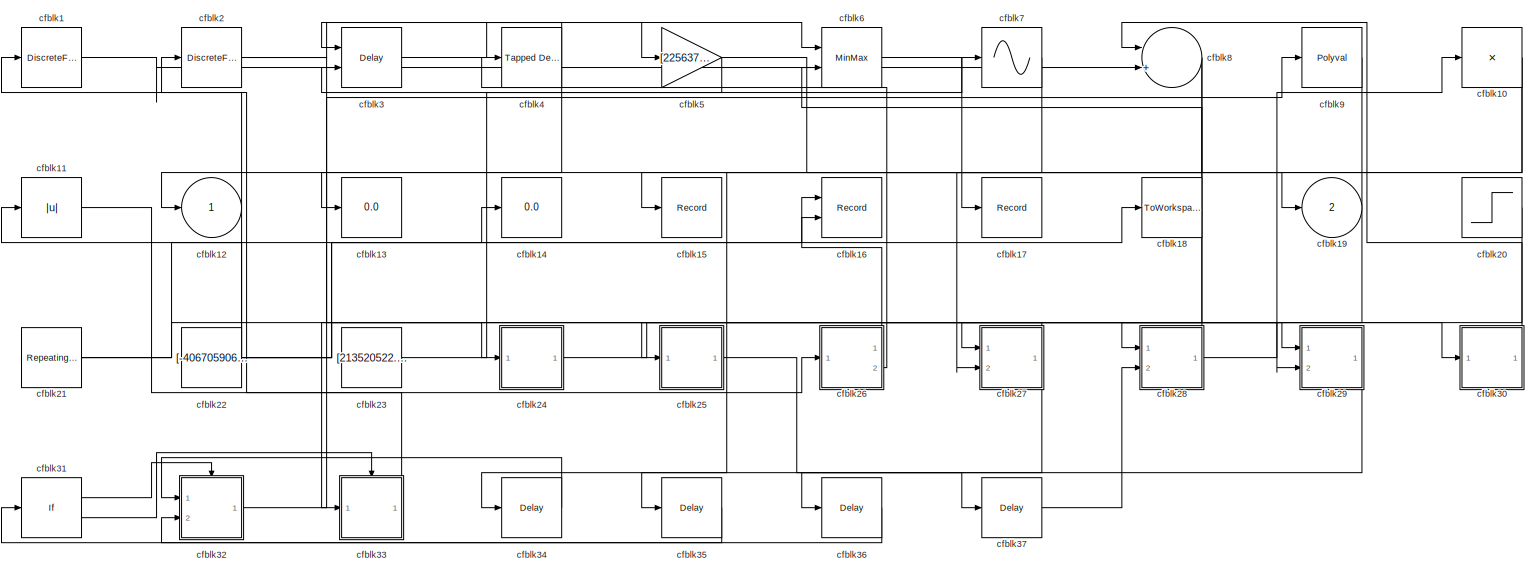
[diagram: root canvas - part 1/1, most of the canvas]
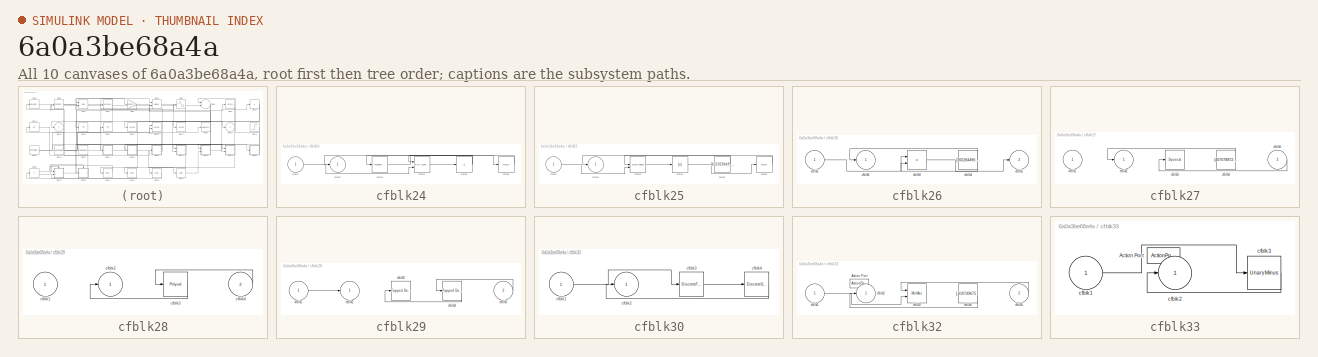
[diagram: thumbnail index - all 10 canvases of the model, root first then tree order]
MODEL slx_6a0a3be68a4a
KIND model
CONFIG AbsTol = auto
CONFIG EnableMultiTasking = off
CONFIG FixedStep = auto
CONFIG MaxStep = auto
CONFIG MinStep = auto
CONFIG RelTol = 1e-3
CONFIG SampleTimeConstraint = Unconstrained
CONFIG SolverName = VariableStepAuto
CONFIG StartTime = 0.0
CONFIG StopTime = 10.0
BLOCK [DiscreteFilter] cfblk1
  InputPortMap = u0
  Ports = [1, 1]
  SampleTime = 1
BLOCK [Product] cfblk10
  Inputs = *
  Ports = [1, 1]
BLOCK [Abs] cfblk11
  SaturateOnIntegerOverflow = off
BLOCK [Outport] cfblk12
BLOCK [Display] cfblk13
  Decimation = 1
  Ports = [1]
BLOCK [Display] cfblk14
  Decimation = 1
  Ports = [1]
BLOCK [Record] cfblk15
  FileSettingsInternal = {"entries":[{"content":{"excelSettings":{"content":{},"type":"Streamout.ExcelSettings"}},"type":"Streamout.FileSettingStorage","uuid":"d99c99a4-b87d-4c9a-a0ee-2737cad6d531"}],"packageUris":["http://schema.mathworks.com/mf0/streamout_blocks/R2020a"],"version":"1.0"}
  Ports = [1]
  SignalsInternal = {"entries":[{"content":{"signals":[{"content":{"blockPath":["sampleModel293/cfblk15"],"channel":[],"dimensions":[1],"domain":"sampleModel293/cfblk15","lineColor":"#4dbeee","plots":[1],"port":1,"sid":[""],"signalID":12562,"signalName":"cfblk7"},"type":"RecordBlkView.Signal","uuid":"48429913-c397-4290-9126-6c6b1df1a7ac"}]},"type":"RecordBlkView.InputSignals","uuid":"9e09da34-561e-4f73-b899-3124a1045...<+97ch>
  VisualizationBindings = {"sparklinesplugin":{"info":[{"bindingParametersList":[],"subplotID":1}]}}
BLOCK [Record] cfblk16
  CompatibilityTag = XY
  FileSettingsInternal = {"entries":[{"content":{"excelSettings":{"content":{},"type":"Streamout.ExcelSettings"}},"type":"Streamout.FileSettingStorage","uuid":"3b933d8f-505a-45fe-b96f-f71fd841957d"}],"packageUris":["http://schema.mathworks.com/mf0/streamout_blocks/R2020a"],"version":"1.0"}
  Layout = [1 1]
  Ports = [2]
  SignalsInternal = {"entries":[{"content":{"signals":[{"content":{"blockPath":["sampleModel293/cfblk16"],"channel":[],"dimensions":[1],"domain":"sampleModel293/cfblk16","lineColor":"#a2142f","plots":[1],"port":1,"sid":[""],"signalID":12550,"signalName":"cfblk26:1"},"type":"RecordBlkView.Signal","uuid":"529dc456-7e45-40f8-804c-43e6a70f2fd8"},{"content":{"blockPath":["sampleModel293/cfblk16"],"channel":[],"dimensions"...<+387ch>
  VisualizationBindings = {"xyplotplugin":{"info":[{"series":[{"bindingParametersList":[{"parameter":"X-Axis","signalID":12550,"signalName":"cfblk26:1"},{"parameter":"Y-Axis","signalID":12554,"signalName":"cfblk22"}],"seriesID":5117}],"subplotID":1}]}}
BLOCK [Record] cfblk17
  FileSettingsInternal = {"entries":[{"content":{"excelSettings":{"content":{},"type":"Streamout.ExcelSettings"}},"type":"Streamout.FileSettingStorage","uuid":"426f14e6-c4e2-46f0-a989-04dd5aec360d"}],"packageUris":["http://schema.mathworks.com/mf0/streamout_blocks/R2020a"],"version":"1.0"}
  Ports = [1]
  SignalsInternal = {"entries":[{"content":{"signals":[{"content":{"blockPath":["sampleModel293/cfblk17"],"channel":[],"dimensions":[1],"domain":"sampleModel293/cfblk17","lineColor":"#77ac30","plots":[1],"port":1,"sid":[""],"signalID":12558,"signalName":"cfblk6"},"type":"RecordBlkView.Signal","uuid":"4d9e3a2d-1e89-4a65-9dbc-802b2b58537e"}]},"type":"RecordBlkView.InputSignals","uuid":"0fd9211e-f2df-46b2-9a81-9eb1214fc...<+97ch>
  VisualizationBindings = {"sparklinesplugin":{"info":[{"bindingParametersList":[],"subplotID":1}]}}
BLOCK [ToWorkspace] cfblk18
  FixptAsFi = on
  MaxDataPoints = inf
  Ports = [1]
  SampleTime = -1
  SaveFormat = Timeseries
  VariableName = tmhfwql
BLOCK [Outport] cfblk19
  Port = 2
BLOCK [DiscreteFilter] cfblk2
  InputPortMap = u0
  Ports = [1, 1]
  SampleTime = 1
BLOCK [Step] cfblk20
  After = [-255497767.535754]
  Before = [-789311183.428134]
  SampleTime = 0
  Time = [48.000000]
BLOCK [Reference] cfblk21  REF=simulink/Sources/Repeating
Sequence
  Ports = [0, 1]
  SourceBlock = simulink/Sources/Repeating\nSequence
  SourceProductBaseCode = SL
  SourceType = Repeating table
BLOCK [Constant] cfblk22
  SampleTime = 1
  Value = [-406705906.444194]
BLOCK [Constant] cfblk23
  SampleTime = 1
  Value = [213520522.876784]
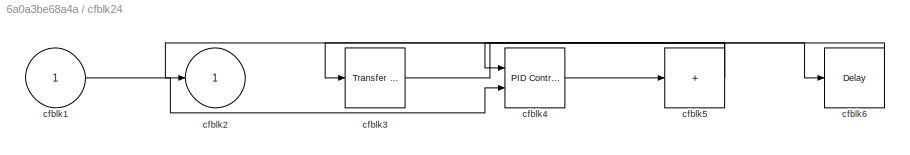
BLOCK [SubSystem] cfblk24
  Ports = [1, 1]
  RequestExecContextInheritance = off
BLOCK [Inport] cfblk24/cfblk1
BLOCK [Outport] cfblk24/cfblk2
BLOCK [Reference] cfblk24/cfblk3  REF=simulink/Discrete/Transfer Fcn
Lead or Lag
  Ports = [1, 1]
  SourceBlock = simulink/Discrete/Transfer Fcn\nLead or Lag
  SourceProductBaseCode = SL
  SourceType = Lead or Lag Compensator
BLOCK [Reference] cfblk24/cfblk4  REF=slpidlib/PID Controller (2DOF)
  Ports = [2, 1]
  SourceBlock = slpidlib/PID Controller (2DOF)
  SourceProductBaseCode = SL
  SourceType = PID 2dof
BLOCK [Sum] cfblk24/cfblk5
  IconShape = rectangular
  Inputs = +
  Ports = [1, 1]
BLOCK [Delay] cfblk24/cfblk6
  InputPortMap = u0
  Ports = [1, 1]
  SampleTime = 1
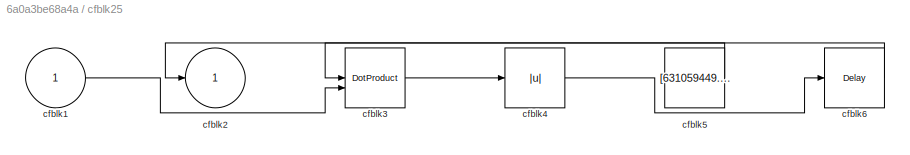
BLOCK [SubSystem] cfblk25
  Ports = [1, 1]
  RequestExecContextInheritance = off
BLOCK [Inport] cfblk25/cfblk1
BLOCK [Outport] cfblk25/cfblk2
BLOCK [DotProduct] cfblk25/cfblk3
  OutDataTypeStr = Inherit: Inherit via internal rule
BLOCK [Abs] cfblk25/cfblk4
  SaturateOnIntegerOverflow = off
BLOCK [Constant] cfblk25/cfblk5
  SampleTime = 1
  Value = [631059449.685480]
BLOCK [Delay] cfblk25/cfblk6
  InputPortMap = u0
  Ports = [1, 1]
  SampleTime = 1
BLOCK [SubSystem] cfblk26
  Ports = [1, 2]
  RequestExecContextInheritance = off
BLOCK [Inport] cfblk26/cfblk1
BLOCK [Outport] cfblk26/cfblk2
BLOCK [Product] cfblk26/cfblk3
  Ports = [2, 1]
BLOCK [Constant] cfblk26/cfblk4
  SampleTime = 1
  Value = [360284490.916601]
BLOCK [Outport] cfblk26/cfblk5
  Port = 2
BLOCK [SubSystem] cfblk27
  Ports = [2, 1]
  RequestExecContextInheritance = off
BLOCK [Inport] cfblk27/cfblk1
BLOCK [Outport] cfblk27/cfblk2
BLOCK [Squeeze] cfblk27/cfblk3
BLOCK [Constant] cfblk27/cfblk4
  SampleTime = 1
  Value = [407078872.434955]
BLOCK [Inport] cfblk27/cfblk5
  Port = 2
BLOCK [SubSystem] cfblk28
  Ports = [2, 1]
  RequestExecContextInheritance = off
BLOCK [Inport] cfblk28/cfblk1
BLOCK [Outport] cfblk28/cfblk2
BLOCK [Polyval] cfblk28/cfblk3
  Coefs = [ +2.081618890e-019, -1.441693666e-014, +4.719686976e-010, -8.536869453e-006, +1.621573104e-001, -8.087801117e+001 ]
BLOCK [Inport] cfblk28/cfblk4
  Port = 2
BLOCK [SubSystem] cfblk29
  Ports = [2, 1]
  RequestExecContextInheritance = off
BLOCK [Inport] cfblk29/cfblk1
BLOCK [Outport] cfblk29/cfblk2
BLOCK [Reference] cfblk29/cfblk3  REF=simulink/Discrete/Tapped Delay
  Ports = [1, 1]
  SourceBlock = simulink/Discrete/Tapped Delay
  SourceProductBaseCode = SL
  SourceType = Tapped Delay Line
BLOCK [Reference] cfblk29/cfblk4  REF=simulink/Discrete/Tapped Delay
  Ports = [1, 1]
  SourceBlock = simulink/Discrete/Tapped Delay
  SourceProductBaseCode = SL
  SourceType = Tapped Delay Line
BLOCK [Inport] cfblk29/cfblk5
  Port = 2
BLOCK [Delay] cfblk3
  InputPortMap = u0,e6
  Ports = [2, 1]
  SampleTime = 1
  ShowEnablePort = on
BLOCK [SubSystem] cfblk30
  Ports = [1, 1]
  RequestExecContextInheritance = off
BLOCK [Inport] cfblk30/cfblk1
BLOCK [Outport] cfblk30/cfblk2
BLOCK [DiscreteFir] cfblk30/cfblk3
  InputPortMap = u0
  OutputPortMap = o0
  Ports = [1, 1]
  SampleTime = 1
BLOCK [DiscreteStateSpace] cfblk30/cfblk4
BLOCK [If] cfblk31
  IfExpression = u1 >= 0
  Ports = [1, 2]
  SampleTime = 1
BLOCK [SubSystem] cfblk32
  Ports = [2, 1, 0, 0, 0, 0, 0, 1]
  RequestExecContextInheritance = off
  TreatAsAtomicUnit = on
BLOCK [ActionPort] cfblk32/Action Port
  ActionPortLabel = if(u1 >= 0)
BLOCK [Inport] cfblk32/cfblk1
BLOCK [Outport] cfblk32/cfblk2
BLOCK [MinMax] cfblk32/cfblk3
  Function = max
  Inputs = 2
  Ports = [2, 1]
BLOCK [Constant] cfblk32/cfblk4
  SampleTime = 1
  Value = [-610749675.840564]
BLOCK [Inport] cfblk32/cfblk5
  Port = 2
BLOCK [SubSystem] cfblk33
  Ports = [1, 1, 0, 0, 0, 0, 0, 1]
  RequestExecContextInheritance = off
  TreatAsAtomicUnit = on
BLOCK [ActionPort] cfblk33/Action Port
  ActionPortLabel = else
BLOCK [Inport] cfblk33/cfblk1
BLOCK [Outport] cfblk33/cfblk2
BLOCK [UnaryMinus] cfblk33/cfblk3
BLOCK [Delay] cfblk34
  InputPortMap = u0
  Ports = [1, 1]
  SampleTime = 1
BLOCK [Delay] cfblk35
  InputPortMap = u0
  Ports = [1, 1]
  SampleTime = 1
BLOCK [Delay] cfblk36
  InputPortMap = u0
  Ports = [1, 1]
  SampleTime = 1
BLOCK [Delay] cfblk37
  InputPortMap = u0
  Ports = [1, 1]
  SampleTime = 1
BLOCK [Reference] cfblk4  REF=simulink/Discrete/Tapped Delay
  Ports = [1, 1]
  SourceBlock = simulink/Discrete/Tapped Delay
  SourceProductBaseCode = SL
  SourceType = Tapped Delay Line
BLOCK [Gain] cfblk5
  Gain = [225637101.315432]
BLOCK [MinMax] cfblk6
  Function = max
  Inputs = 2
  Ports = [2, 1]
BLOCK [Sin] cfblk7
  Ports = [1, 1]
  SampleTime = 0
  TimeSource = Use external signal
BLOCK [Sum] cfblk8
  Inputs = |++
  Ports = [2, 1]
BLOCK [Polyval] cfblk9
  Coefs = [ +2.081618890e-019, -1.441693666e-014, +4.719686976e-010, -8.536869453e-006, +1.621573104e-001, -8.087801117e+001 ]
NET cfblk10:1 -> cfblk27:2, cfblk35:1
LINE cfblk11:1 -> cfblk26:1
LINE cfblk1:1 -> cfblk8:2
LINE cfblk20:1 -> cfblk27:1
NET cfblk21:1 -> cfblk14:1, cfblk24:1
NET cfblk22:1 -> cfblk11:1, cfblk16:2, cfblk18:1, cfblk1:1, cfblk29:1
LINE cfblk23:1 -> cfblk7:1
LINE cfblk24/cfblk1:1 -> cfblk24/cfblk4:2
LINE cfblk24/cfblk3:1 -> cfblk24/cfblk6:1
LINE cfblk24/cfblk4:1 -> cfblk24/cfblk5:1
NET cfblk24/cfblk5:1 -> cfblk24/cfblk2:1, cfblk24/cfblk3:1
LINE cfblk24/cfblk6:1 -> cfblk24/cfblk4:1
LINE cfblk24:1 -> cfblk30:1
LINE cfblk25/cfblk1:1 -> cfblk25/cfblk3:2
LINE cfblk25/cfblk3:1 -> cfblk25/cfblk4:1
LINE cfblk25/cfblk4:1 -> cfblk25/cfblk6:1
LINE cfblk25/cfblk5:1 -> cfblk25/cfblk2:1
LINE cfblk25/cfblk6:1 -> cfblk25/cfblk3:1
LINE cfblk25:1 -> cfblk37:1
LINE cfblk26/cfblk1:1 -> cfblk26/cfblk3:1
LINE cfblk26/cfblk3:1 -> cfblk26/cfblk5:1
NET cfblk26/cfblk4:1 -> cfblk26/cfblk2:1, cfblk26/cfblk3:2
LINE cfblk26:1 -> cfblk16:1
LINE cfblk26:2 -> cfblk4:1
LINE cfblk27/cfblk4:1 -> cfblk27/cfblk2:1
LINE cfblk27/cfblk5:1 -> cfblk27/cfblk3:1
NET cfblk27:1 -> cfblk25:1, cfblk36:1
LINE cfblk28/cfblk3:1 -> cfblk28/cfblk2:1
LINE cfblk28/cfblk4:1 -> cfblk28/cfblk3:1
NET cfblk28:1 -> cfblk10:1, cfblk6:2
LINE cfblk29/cfblk1:1 -> cfblk29/cfblk2:1
LINE cfblk29/cfblk4:1 -> cfblk29/cfblk3:1
LINE cfblk29/cfblk5:1 -> cfblk29/cfblk4:1
LINE cfblk29:1 -> cfblk34:1
NET cfblk2:1 -> cfblk29:2, cfblk5:1
LINE cfblk30/cfblk1:1 -> cfblk30/cfblk3:1
LINE cfblk30/cfblk3:1 -> cfblk30/cfblk4:1
LINE cfblk30/cfblk4:1 -> cfblk30/cfblk2:1
LINE cfblk30:1 -> cfblk8:1
LINE cfblk31:1 -> cfblk32:ifaction
LINE cfblk31:2 -> cfblk33:ifaction
LINE cfblk32/cfblk1:1 -> cfblk32/cfblk3:2
LINE cfblk32/cfblk4:1 -> cfblk32/cfblk2:1
LINE cfblk32/cfblk5:1 -> cfblk32/cfblk3:1
LINE cfblk32:1 -> cfblk9:1
LINE cfblk33/cfblk1:1 -> cfblk33/cfblk3:1
LINE cfblk33/cfblk3:1 -> cfblk33/cfblk2:1
LINE cfblk33:1 -> cfblk2:1
LINE cfblk34:1 -> cfblk32:1
LINE cfblk35:1 -> cfblk31:1
LINE cfblk36:1 -> cfblk32:2
LINE cfblk37:1 -> cfblk28:2
LINE cfblk3:1 -> cfblk6:1
NET cfblk4:1 -> cfblk13:1, cfblk3:1
NET cfblk5:1 -> cfblk19:1, cfblk3:2
LINE cfblk6:1 -> cfblk17:1
LINE cfblk7:1 -> cfblk15:1
NET cfblk8:1 -> cfblk12:1, cfblk33:1
LINE cfblk9:1 -> cfblk28:1
note: NET lines group one-source signal fan-out (src -> all destinations, sorted); 1:1 wires keep LINE
